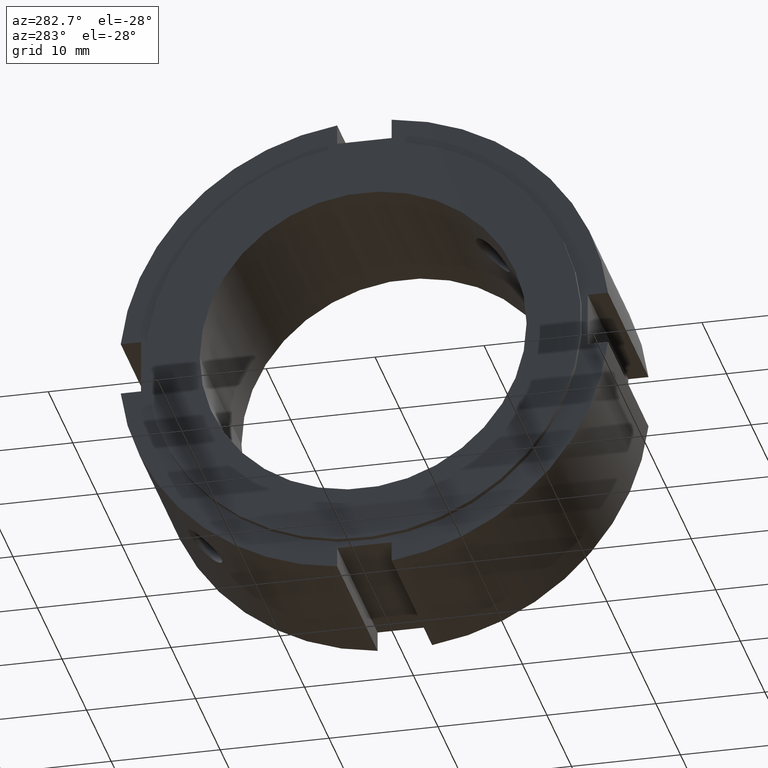
[diagram: clean part render]
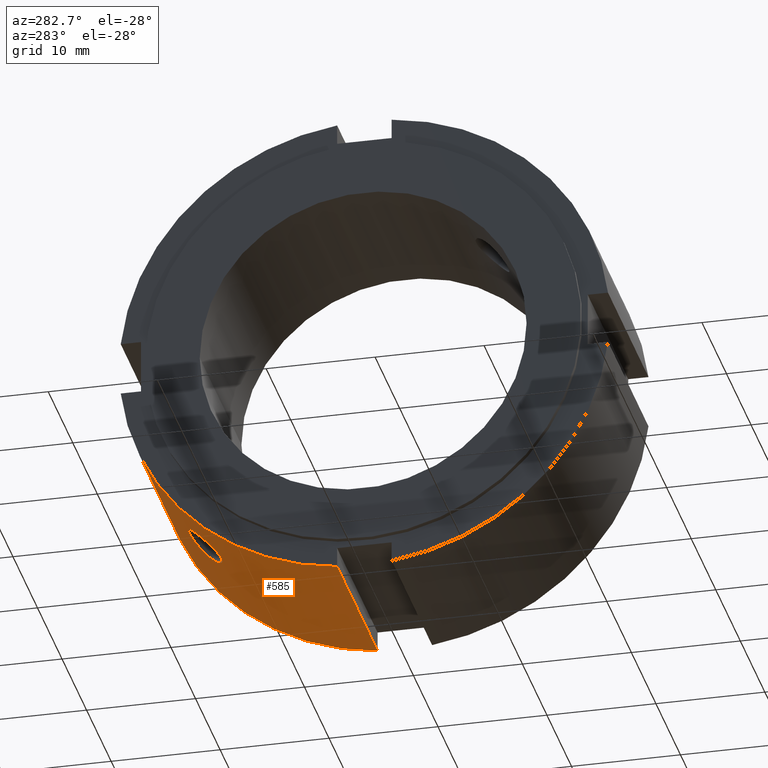
[diagram: same view with one face highlighted and labeled with its STEP entity id]
A machine part, auxiliary view. The second image highlights one B-rep face of the part: STEP entity #585.
In plain terms, the highlighted cylindrical surface (partial cylindrical patch) has radius 22.5 mm, axis along (1, 0, 0).
Its self-contained STEP definition (entity closure, byte-faithful):
#73=CARTESIAN_POINT('',(16.500000000000007,2.499999999999996,-22.360679774997898));
#74=VERTEX_POINT('',#73);
#75=CARTESIAN_POINT('',(0.0,2.499999999999996,-22.360679774997898));
#76=VERTEX_POINT('',#75);
#77=CARTESIAN_POINT('',(16.500000000000007,2.499999999999996,-22.360679774997898));
#78=DIRECTION('',(-1.0,0.0,0.0));
#79=VECTOR('',#78,16.500000000000007);
#80=LINE('',#77,#79);
#81=EDGE_CURVE('',#74,#76,#80,.T.);
#504=CARTESIAN_POINT('',(8.250000000000002,0.0,0.0));
#505=DIRECTION('',(1.0,0.0,0.0));
#506=DIRECTION('',(0.0,1.0,0.0));
#507=AXIS2_PLACEMENT_3D('',#504,#505,#506);
#508=CYLINDRICAL_SURFACE('',#507,22.500000000000000);
#509=ORIENTED_EDGE('',*,*,#81,.T.);
#510=CARTESIAN_POINT('',(0.0,22.360679774997898,-2.500000000000000));
#511=VERTEX_POINT('',#510);
#512=CARTESIAN_POINT('',(0.0,0.0,0.0));
#513=DIRECTION('',(1.0,0.0,0.0));
#514=DIRECTION('',(0.0,1.0,0.0));
#515=AXIS2_PLACEMENT_3D('',#512,#513,#514);
#516=CIRCLE('',#515,22.500000000000000);
#517=EDGE_CURVE('',#76,#511,#516,.T.);
#518=ORIENTED_EDGE('',*,*,#517,.T.);
#519=CARTESIAN_POINT('',(16.500000000000007,22.360679774997898,-2.500000000000001));
#520=VERTEX_POINT('',#519);
#521=CARTESIAN_POINT('',(0.0,22.360679774997898,-2.500000000000000));
#522=DIRECTION('',(1.0,0.0,0.0));
#523=VECTOR('',#522,16.500000000000007);
#524=LINE('',#521,#523);
#525=EDGE_CURVE('',#511,#520,#524,.T.);
#526=ORIENTED_EDGE('',*,*,#525,.T.);
#527=CARTESIAN_POINT('',(16.500000000000004,0.0,0.0));
#528=DIRECTION('',(1.0,0.0,0.0));
#529=DIRECTION('',(0.0,1.0,0.0));
#530=AXIS2_PLACEMENT_3D('',#527,#528,#529);
#531=CIRCLE('',#530,22.500000000000004);
#532=EDGE_CURVE('',#74,#520,#531,.T.);
#533=ORIENTED_EDGE('',*,*,#532,.F.);
#534=EDGE_LOOP('',(#509,#518,#526,#533));
#535=FACE_OUTER_BOUND('',#534,.T.);
#536=CARTESIAN_POINT('',(7.600000000000002,15.909902576697320,-15.909902576697322));
#537=VERTEX_POINT('',#536);
#538=CARTESIAN_POINT('',(3.400000000000003,15.909902576697320,-15.909902576697322));
#539=VERTEX_POINT('',#538);
#540=CARTESIAN_POINT('',(7.600000000000003,15.909902576697320,-15.909902576697322));
#541=CARTESIAN_POINT('',(7.600000000000003,16.096469292374358,-15.723335861020280));
#542=CARTESIAN_POINT('',(7.547239057296466,16.291779852313052,-15.520789539391270));
#543=CARTESIAN_POINT('',(7.332878443238672,16.644524718061657,-15.141888772320410));
#544=CARTESIAN_POINT('',(7.171287251154158,16.802153927952020,-14.965711025155484));
#545=CARTESIAN_POINT('',(6.798560749055520,17.048279457433907,-14.684721680313594));
#546=CARTESIAN_POINT('',(6.562523797474904,17.153249462024604,-14.561167759025849));
#547=CARTESIAN_POINT('',(6.045172914387153,17.291706665941931,-14.396473673633343));
#548=CARTESIAN_POINT('',(5.763845860257931,17.325378779424650,-14.355530298441153));
#549=CARTESIAN_POINT('',(5.236154139742075,17.325378779424650,-14.355530298441153));
#550=CARTESIAN_POINT('',(4.954827085612854,17.291706665941931,-14.396473673633343));
#551=CARTESIAN_POINT('',(4.437476202525101,17.153249462024604,-14.561167759025849));
#552=CARTESIAN_POINT('',(4.201439250944484,17.048279457433907,-14.684721680313594));
#553=CARTESIAN_POINT('',(3.828712748845847,16.802153927952020,-14.965711025155484));
#554=CARTESIAN_POINT('',(3.667121556761334,16.644524718061657,-15.141888772320410));
#555=CARTESIAN_POINT('',(3.452760942703541,16.291779852313052,-15.520789539391270));
#556=CARTESIAN_POINT('',(3.400000000000003,16.096469292374358,-15.723335861020278));
#557=CARTESIAN_POINT('',(3.400000000000003,15.909902576697320,-15.909902576697320));
#558=B_SPLINE_CURVE_WITH_KNOTS('',3,(#540,#541,#542,#543,#544,#545,#546,#547,#548,#549,#550,#551,#552,#553,#554,#555,#556,#557),.UNSPECIFIED.,.F.,.U.,(4,2,2,2,2,2,2,2,4),(0.316614623913483,0.395768177792846,0.474921731672209,0.554075489749587,0.633229247826965,0.712383005904344,0.791536763981722,0.870690317861085,0.949843871740448),.UNSPECIFIED.);
#559=EDGE_CURVE('',#537,#539,#558,.T.);
#560=ORIENTED_EDGE('',*,*,#559,.T.);
#561=CARTESIAN_POINT('',(3.400000000000003,15.909902576697316,-15.909902576697320));
#562=CARTESIAN_POINT('',(3.400000000000003,15.723335861020276,-16.096469292374358));
#563=CARTESIAN_POINT('',(3.452760942703541,15.520789539391274,-16.291779852313052));
#564=CARTESIAN_POINT('',(3.667121556761335,15.141888772320414,-16.644524718061660));
#565=CARTESIAN_POINT('',(3.828712748845846,14.965711025155478,-16.802153927952023));
#566=CARTESIAN_POINT('',(4.201439250944484,14.684721680313588,-17.048279457433910));
#567=CARTESIAN_POINT('',(4.437476202525101,14.561167759025853,-17.153249462024604));
#568=CARTESIAN_POINT('',(4.954827085612853,14.396473673633345,-17.291706665941934));
#569=CARTESIAN_POINT('',(5.236154139742074,14.355530298441151,-17.325378779424653));
#570=CARTESIAN_POINT('',(5.500000000000003,14.355530298441151,-17.325378779424653));
#571=CARTESIAN_POINT('',(5.763845860257931,14.355530298441151,-17.325378779424653));
#572=CARTESIAN_POINT('',(6.045172914387153,14.396473673633343,-17.291706665941934));
#573=CARTESIAN_POINT('',(6.562523797474905,14.561167759025849,-17.153249462024604));
#574=CARTESIAN_POINT('',(6.798560749055522,14.684721680313588,-17.048279457433910));
#575=CARTESIAN_POINT('',(7.171287251154159,14.965711025155478,-16.802153927952023));
#576=CARTESIAN_POINT('',(7.332878443238671,15.141888772320414,-16.644524718061660));
#577=CARTESIAN_POINT('',(7.547239057296464,15.520789539391274,-16.291779852313052));
#578=CARTESIAN_POINT('',(7.600000000000003,15.723335861020276,-16.096469292374358));
#579=CARTESIAN_POINT('',(7.600000000000003,15.909902576697316,-15.909902576697320));
#580=B_SPLINE_CURVE_WITH_KNOTS('',3,(#561,#562,#563,#564,#565,#566,#567,#568,#569,#570,#571,#572,#573,#574,#575,#576,#577,#578,#579),.UNSPECIFIED.,.F.,.U.,(4,2,2,2,3,2,2,2,4),(0.949843871740448,1.028997425619811,1.108150979499174,1.187304737576552,1.266458495653931,1.345612253731309,1.424766011808688,1.503919565688051,1.583073119567414),.UNSPECIFIED.);
#581=EDGE_CURVE('',#539,#537,#580,.T.);
#582=ORIENTED_EDGE('',*,*,#581,.T.);
#583=EDGE_LOOP('',(#560,#582));
#584=FACE_BOUND('',#583,.T.);
#585=ADVANCED_FACE('',(#535,#584),#508,.T.);